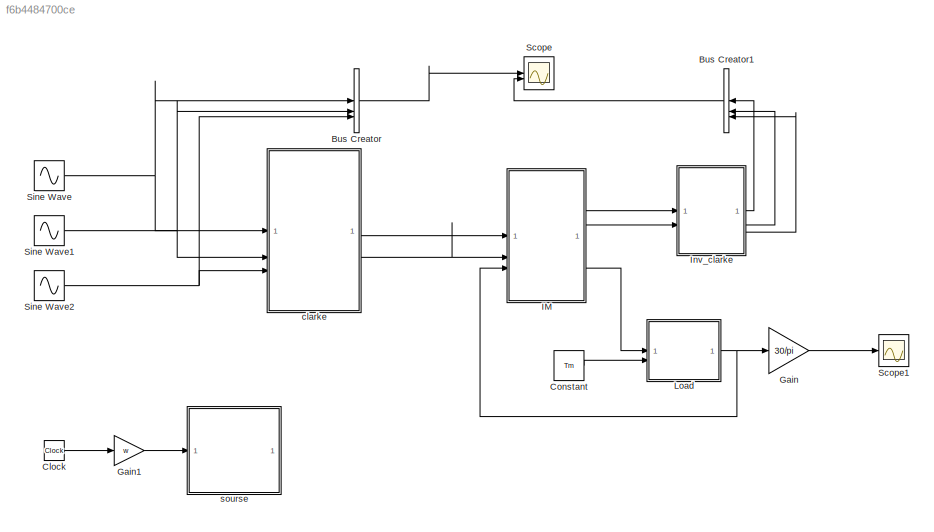
MODEL slx_f6b4484700ce
KIND model
CONFIG AbsTol = auto
CONFIG EnableMultiTasking = off
CONFIG FixedStep = auto
CONFIG MaxStep = auto
CONFIG MinStep = auto
CONFIG RelTol = 1e-3
CONFIG SampleTimeConstraint = Unconstrained
CONFIG SolverName = VariableStepAuto
CONFIG StartTime = 0.0
CONFIG StopTime = 1.5
BLOCK [BusCreator] Bus Creator
  DisplayOption = bar
  InheritFromInputs = on
  Inputs = 3
BLOCK [BusCreator] Bus Creator1
  DisplayOption = bar
  InheritFromInputs = on
  Inputs = 3
BLOCK [Clock] Clock
BLOCK [Constant] Constant
  Value = Tm
BLOCK [Gain] Gain
  Gain = 30/pi
BLOCK [Gain] Gain1
  Gain = w
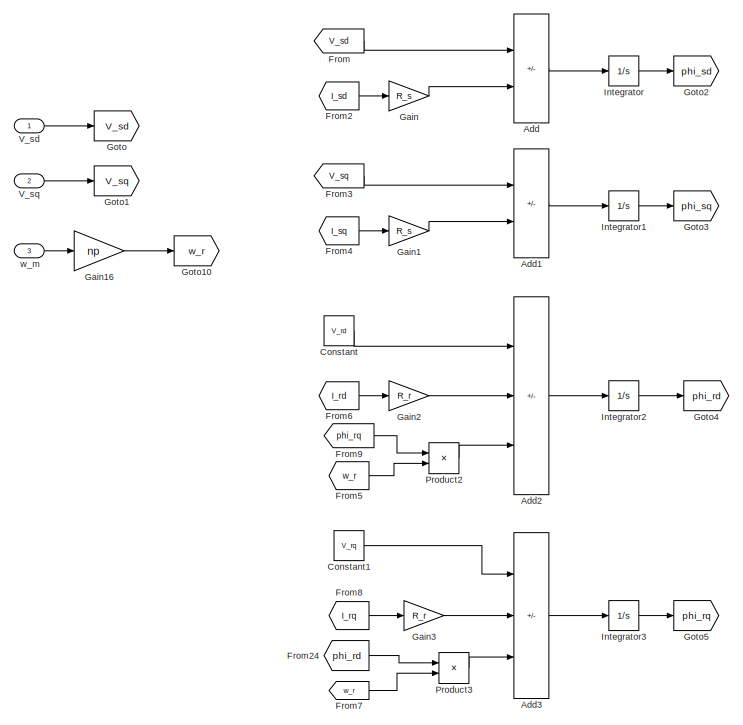
[diagram: IM - part 1/2, left side, full height]
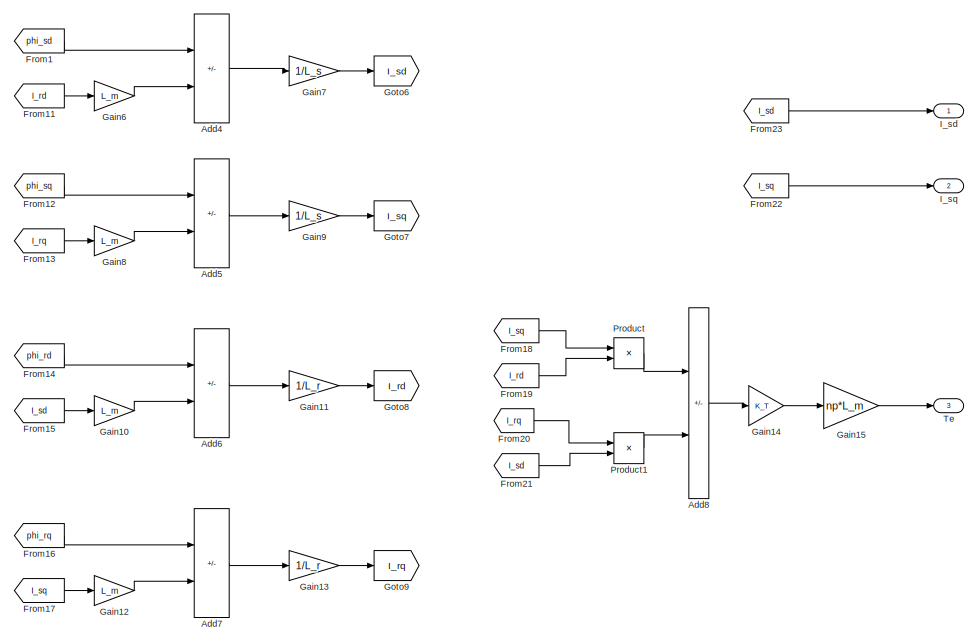
[diagram: IM - part 2/2, right side, full height]
BLOCK [SubSystem] IM
BLOCK [Sum] IM/Add
  IconShape = rectangular
  Inputs = +-
BLOCK [Sum] IM/Add1
  IconShape = rectangular
  Inputs = +-
BLOCK [Sum] IM/Add2
  IconShape = rectangular
  Inputs = +--
BLOCK [Sum] IM/Add3
  IconShape = rectangular
  Inputs = +-+
BLOCK [Sum] IM/Add4
  IconShape = rectangular
  Inputs = +-
BLOCK [Sum] IM/Add5
  IconShape = rectangular
  Inputs = +-
BLOCK [Sum] IM/Add6
  IconShape = rectangular
  Inputs = +-
BLOCK [Sum] IM/Add7
  IconShape = rectangular
  Inputs = +-
BLOCK [Sum] IM/Add8
  IconShape = rectangular
  Inputs = +-
BLOCK [Constant] IM/Constant
  Value = V_rd
BLOCK [Constant] IM/Constant1
  Value = V_rq
BLOCK [From] IM/From
  GotoTag = V_sd
BLOCK [From] IM/From1
  GotoTag = phi_sd
BLOCK [From] IM/From11
  GotoTag = I_rd
BLOCK [From] IM/From12
  GotoTag = phi_sq
BLOCK [From] IM/From13
  GotoTag = I_rq
BLOCK [From] IM/From14
  GotoTag = phi_rd
BLOCK [From] IM/From15
  GotoTag = I_sd
BLOCK [From] IM/From16
  GotoTag = phi_rq
BLOCK [From] IM/From17
  GotoTag = I_sq
BLOCK [From] IM/From18
  GotoTag = I_sq
BLOCK [From] IM/From19
  GotoTag = I_rd
BLOCK [From] IM/From2
  GotoTag = I_sd
BLOCK [From] IM/From20
  GotoTag = I_rq
BLOCK [From] IM/From21
  GotoTag = I_sd
BLOCK [From] IM/From22
  GotoTag = I_sq
BLOCK [From] IM/From23
  GotoTag = I_sd
BLOCK [From] IM/From24
  GotoTag = phi_rd
BLOCK [From] IM/From3
  GotoTag = V_sq
BLOCK [From] IM/From4
  GotoTag = I_sq
BLOCK [From] IM/From5
  GotoTag = w_r
BLOCK [From] IM/From6
  GotoTag = I_rd
BLOCK [From] IM/From7
  GotoTag = w_r
BLOCK [From] IM/From8
  GotoTag = I_rq
BLOCK [From] IM/From9
  GotoTag = phi_rq
BLOCK [Gain] IM/Gain
  Gain = R_s
BLOCK [Gain] IM/Gain1
  Gain = R_s
BLOCK [Gain] IM/Gain10
  Gain = L_m
BLOCK [Gain] IM/Gain11
  Gain = 1/L_r
BLOCK [Gain] IM/Gain12
  Gain = L_m
BLOCK [Gain] IM/Gain13
  Gain = 1/L_r
BLOCK [Gain] IM/Gain14
  Gain = K_T
BLOCK [Gain] IM/Gain15
  Gain = np*L_m
BLOCK [Gain] IM/Gain16
  Gain = np
BLOCK [Gain] IM/Gain2
  Gain = R_r
BLOCK [Gain] IM/Gain3
  Gain = R_r
BLOCK [Gain] IM/Gain6
  Gain = L_m
BLOCK [Gain] IM/Gain7
  Gain = 1/L_s
BLOCK [Gain] IM/Gain8
  Gain = L_m
BLOCK [Gain] IM/Gain9
  Gain = 1/L_s
BLOCK [Goto] IM/Goto
  GotoTag = V_sd
BLOCK [Goto] IM/Goto1
  GotoTag = V_sq
BLOCK [Goto] IM/Goto10
  GotoTag = w_r
BLOCK [Goto] IM/Goto2
  GotoTag = phi_sd
BLOCK [Goto] IM/Goto3
  GotoTag = phi_sq
BLOCK [Goto] IM/Goto4
  GotoTag = phi_rd
BLOCK [Goto] IM/Goto5
  GotoTag = phi_rq
BLOCK [Goto] IM/Goto6
  GotoTag = I_sd
BLOCK [Goto] IM/Goto7
  GotoTag = I_sq
BLOCK [Goto] IM/Goto8
  GotoTag = I_rd
BLOCK [Goto] IM/Goto9
  GotoTag = I_rq
BLOCK [Outport] IM/I_sd
BLOCK [Outport] IM/I_sq
  Port = 2
BLOCK [Integrator] IM/Integrator
BLOCK [Integrator] IM/Integrator1
BLOCK [Integrator] IM/Integrator2
BLOCK [Integrator] IM/Integrator3
BLOCK [Product] IM/Product
BLOCK [Product] IM/Product1
BLOCK [Product] IM/Product2
BLOCK [Product] IM/Product3
BLOCK [Outport] IM/Te
  Port = 3
BLOCK [Inport] IM/V_sd
BLOCK [Inport] IM/V_sq
  Port = 2
BLOCK [Inport] IM/w_m
  Port = 3
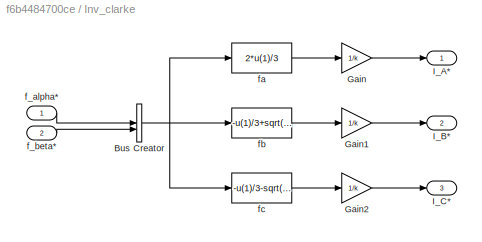
BLOCK [SubSystem] Inv_clarke
BLOCK [BusCreator] Inv_clarke/Bus Creator
  DisplayOption = bar
  InheritFromInputs = on
  Inputs = 2
BLOCK [Gain] Inv_clarke/Gain
  Gain = 1/k
BLOCK [Gain] Inv_clarke/Gain1
  Gain = 1/k
BLOCK [Gain] Inv_clarke/Gain2
  Gain = 1/k
BLOCK [Outport] Inv_clarke/I_A*
BLOCK [Outport] Inv_clarke/I_B*
  Port = 2
BLOCK [Outport] Inv_clarke/I_C*
  Port = 3
BLOCK [Inport] Inv_clarke/f_alpha*
  NameLocation = top
BLOCK [Inport] Inv_clarke/f_beta*
  Port = 2
BLOCK [Fcn] Inv_clarke/fa
  Expr = 2*u(1)/3
BLOCK [Fcn] Inv_clarke/fb
  Expr = -u(1)/3+sqrt(3)*u(2)/3
BLOCK [Fcn] Inv_clarke/fc
  Expr = -u(1)/3-sqrt(3)*u(2)/3
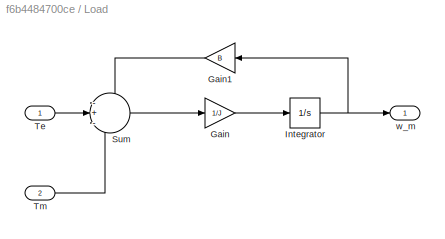
BLOCK [SubSystem] Load
BLOCK [Gain] Load/Gain
  Gain = 1/J
BLOCK [Gain] Load/Gain1
  Gain = B
BLOCK [Integrator] Load/Integrator
BLOCK [Sum] Load/Sum
  Inputs = -+-
BLOCK [Inport] Load/Te
BLOCK [Inport] Load/Tm
  Port = 2
BLOCK [Outport] Load/w_m
BLOCK [Scope] Scope
  Floating = off
  NumInputPorts = 2
  ScopeSpecificationString = Simulink.scopes.TimeScopeBlockCfg('CurrentConfiguration', extmgr.ConfigurationSet(extmgr.Configuration('Core','General UI',true),extmgr.Configuration('Core','Source UI',true),extmgr.Configuration('Sources','WiredSimulink',true),extmgr.Configuration('Visuals','Time Domain',true,'SerializedDisplays',{struct('MinYLimReal','-275.00000','MaxYLimReal','275.00000','YLabelReal','','MinYLimMag',' 0.00000',...<+2186ch>
BLOCK [Scope] Scope1
  Floating = off
  NumInputPorts = 1
  ScopeSpecificationString = Simulink.scopes.TimeScopeBlockCfg('CurrentConfiguration', extmgr.ConfigurationSet(extmgr.Configuration('Core','General UI',true),extmgr.Configuration('Core','Source UI',true),extmgr.Configuration('Sources','WiredSimulink',true,'DataLoggingVariableName','ScopeData1'),extmgr.Configuration('Visuals','Time Domain',true,'SerializedDisplays',{struct('MinYLimReal','-186.60936','MaxYLimReal','1665.16845',...<+1520ch>
BLOCK [Sin] Sine Wave
  Amplitude = 220
  Frequency = 2*pi*50
  SampleTime = 0.00001
BLOCK [Sin] Sine Wave1
  Amplitude = 220
  Frequency = 2*pi*50
  Phase = (-2/3)*pi
  SampleTime = 0.00001
BLOCK [Sin] Sine Wave2
  Amplitude = 220
  Frequency = 2*pi*50
  Phase = (2/3)*pi
  SampleTime = 0.00001
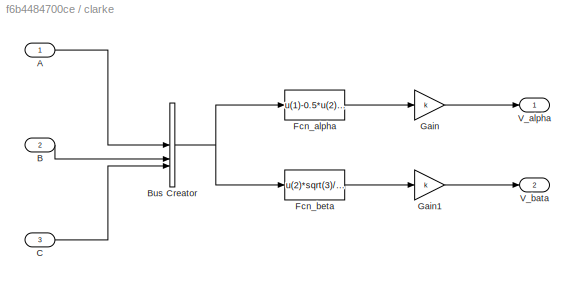
BLOCK [SubSystem] clarke
BLOCK [Inport] clarke/A
BLOCK [Inport] clarke/B
  Port = 2
BLOCK [BusCreator] clarke/Bus Creator
  DisplayOption = bar
  InheritFromInputs = on
  Inputs = 3
BLOCK [Inport] clarke/C
  Port = 3
BLOCK [Fcn] clarke/Fcn_alpha
  Expr = u(1)-0.5*u(2)-0.5*u(3)
BLOCK [Fcn] clarke/Fcn_beta
  Expr = u(2)*sqrt(3)/2-u(3)*sqrt(3)/2
BLOCK [Gain] clarke/Gain
  Gain = k
BLOCK [Gain] clarke/Gain1
  Gain = k
BLOCK [Outport] clarke/V_alpha
BLOCK [Outport] clarke/V_bata
  Port = 2
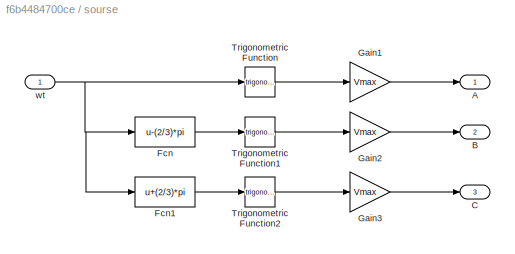
BLOCK [SubSystem] sourse
BLOCK [Outport] sourse/A
BLOCK [Outport] sourse/B
  Port = 2
BLOCK [Outport] sourse/C
  Port = 3
BLOCK [Fcn] sourse/Fcn
  Expr = u-(2/3)*pi
BLOCK [Fcn] sourse/Fcn1
  Expr = u+(2/3)*pi
BLOCK [Gain] sourse/Gain1
  Gain = Vmax
BLOCK [Gain] sourse/Gain2
  Gain = Vmax
BLOCK [Gain] sourse/Gain3
  Gain = Vmax
BLOCK [Trigonometry] sourse/Trigonometric Function
BLOCK [Trigonometry] sourse/Trigonometric Function1
BLOCK [Trigonometry] sourse/Trigonometric Function2
BLOCK [Inport] sourse/wt
LINE Bus Creator1:1 -> Scope:2
LINE Bus Creator:1 -> Scope:1
LINE Clock:1 -> Gain1:1
LINE Constant:1 -> Load:2
LINE Gain1:1 -> sourse:1
LINE Gain:1 -> Scope1:1
LINE IM/Add1:1 -> IM/Integrator1:1
LINE IM/Add2:1 -> IM/Integrator2:1
LINE IM/Add3:1 -> IM/Integrator3:1
LINE IM/Add4:1 -> IM/Gain7:1
LINE IM/Add5:1 -> IM/Gain9:1
LINE IM/Add6:1 -> IM/Gain11:1
LINE IM/Add7:1 -> IM/Gain13:1
LINE IM/Add8:1 -> IM/Gain14:1
LINE IM/Add:1 -> IM/Integrator:1
LINE IM/Constant1:1 -> IM/Add3:1
LINE IM/Constant:1 -> IM/Add2:1
LINE IM/From11:1 -> IM/Gain6:1
LINE IM/From12:1 -> IM/Add5:1
LINE IM/From13:1 -> IM/Gain8:1
LINE IM/From14:1 -> IM/Add6:1
LINE IM/From15:1 -> IM/Gain10:1
LINE IM/From16:1 -> IM/Add7:1
LINE IM/From17:1 -> IM/Gain12:1
LINE IM/From18:1 -> IM/Product:1
LINE IM/From19:1 -> IM/Product:2
LINE IM/From1:1 -> IM/Add4:1
LINE IM/From20:1 -> IM/Product1:1
LINE IM/From21:1 -> IM/Product1:2
LINE IM/From22:1 -> IM/I_sq:1
LINE IM/From23:1 -> IM/I_sd:1
LINE IM/From24:1 -> IM/Product3:1
LINE IM/From2:1 -> IM/Gain:1
LINE IM/From3:1 -> IM/Add1:1
LINE IM/From4:1 -> IM/Gain1:1
LINE IM/From5:1 -> IM/Product2:2
LINE IM/From6:1 -> IM/Gain2:1
LINE IM/From7:1 -> IM/Product3:2
LINE IM/From8:1 -> IM/Gain3:1
LINE IM/From9:1 -> IM/Product2:1
LINE IM/From:1 -> IM/Add:1
LINE IM/Gain10:1 -> IM/Add6:2
LINE IM/Gain11:1 -> IM/Goto8:1
LINE IM/Gain12:1 -> IM/Add7:2
LINE IM/Gain13:1 -> IM/Goto9:1
LINE IM/Gain14:1 -> IM/Gain15:1
LINE IM/Gain15:1 -> IM/Te:1
LINE IM/Gain16:1 -> IM/Goto10:1
LINE IM/Gain1:1 -> IM/Add1:2
LINE IM/Gain2:1 -> IM/Add2:2
LINE IM/Gain3:1 -> IM/Add3:2
LINE IM/Gain6:1 -> IM/Add4:2
LINE IM/Gain7:1 -> IM/Goto6:1
LINE IM/Gain8:1 -> IM/Add5:2
LINE IM/Gain9:1 -> IM/Goto7:1
LINE IM/Gain:1 -> IM/Add:2
LINE IM/Integrator1:1 -> IM/Goto3:1
LINE IM/Integrator2:1 -> IM/Goto4:1
LINE IM/Integrator3:1 -> IM/Goto5:1
LINE IM/Integrator:1 -> IM/Goto2:1
LINE IM/Product1:1 -> IM/Add8:2
LINE IM/Product2:1 -> IM/Add2:3
LINE IM/Product3:1 -> IM/Add3:3
LINE IM/Product:1 -> IM/Add8:1
LINE IM/V_sd:1 -> IM/Goto:1
LINE IM/V_sq:1 -> IM/Goto1:1
LINE IM/w_m:1 -> IM/Gain16:1
LINE IM:1 -> Inv_clarke:1
LINE IM:2 -> Inv_clarke:2
LINE IM:3 -> Load:1
NET Inv_clarke/Bus Creator:1 -> Inv_clarke/fa:1, Inv_clarke/fb:1, Inv_clarke/fc:1
LINE Inv_clarke/Gain1:1 -> Inv_clarke/I_B*:1
LINE Inv_clarke/Gain2:1 -> Inv_clarke/I_C*:1
LINE Inv_clarke/Gain:1 -> Inv_clarke/I_A*:1
LINE Inv_clarke/f_alpha*:1 -> Inv_clarke/Bus Creator:1
LINE Inv_clarke/f_beta*:1 -> Inv_clarke/Bus Creator:2
LINE Inv_clarke/fa:1 -> Inv_clarke/Gain:1
LINE Inv_clarke/fb:1 -> Inv_clarke/Gain1:1
LINE Inv_clarke/fc:1 -> Inv_clarke/Gain2:1
LINE Inv_clarke:1 -> Bus Creator1:1
LINE Inv_clarke:2 -> Bus Creator1:2
LINE Inv_clarke:3 -> Bus Creator1:3
LINE Load/Gain1:1 -> Load/Sum:1
LINE Load/Gain:1 -> Load/Integrator:1
NET Load/Integrator:1 -> Load/Gain1:1, Load/w_m:1
LINE Load/Sum:1 -> Load/Gain:1
LINE Load/Te:1 -> Load/Sum:2
LINE Load/Tm:1 -> Load/Sum:3
NET Load:1 -> Gain:1, IM:3
NET Sine Wave1:1 -> Bus Creator:2, clarke:2
NET Sine Wave2:1 -> Bus Creator:3, clarke:3
NET Sine Wave:1 -> Bus Creator:1, clarke:1
LINE clarke/A:1 -> clarke/Bus Creator:1
LINE clarke/B:1 -> clarke/Bus Creator:2
NET clarke/Bus Creator:1 -> clarke/Fcn_alpha:1, clarke/Fcn_beta:1
LINE clarke/C:1 -> clarke/Bus Creator:3
LINE clarke/Fcn_alpha:1 -> clarke/Gain:1
LINE clarke/Fcn_beta:1 -> clarke/Gain1:1
LINE clarke/Gain1:1 -> clarke/V_bata:1
LINE clarke/Gain:1 -> clarke/V_alpha:1
LINE clarke:1 -> IM:1
LINE clarke:2 -> IM:2
LINE sourse/Fcn1:1 -> sourse/Trigonometric Function2:1
LINE sourse/Fcn:1 -> sourse/Trigonometric Function1:1
LINE sourse/Gain1:1 -> sourse/A:1
LINE sourse/Gain2:1 -> sourse/B:1
LINE sourse/Gain3:1 -> sourse/C:1
LINE sourse/Trigonometric Function1:1 -> sourse/Gain2:1
LINE sourse/Trigonometric Function2:1 -> sourse/Gain3:1
LINE sourse/Trigonometric Function:1 -> sourse/Gain1:1
NET sourse/wt:1 -> sourse/Fcn1:1, sourse/Fcn:1, sourse/Trigonometric Function:1
note: NET lines group one-source signal fan-out (src -> all destinations, sorted); 1:1 wires keep LINE
